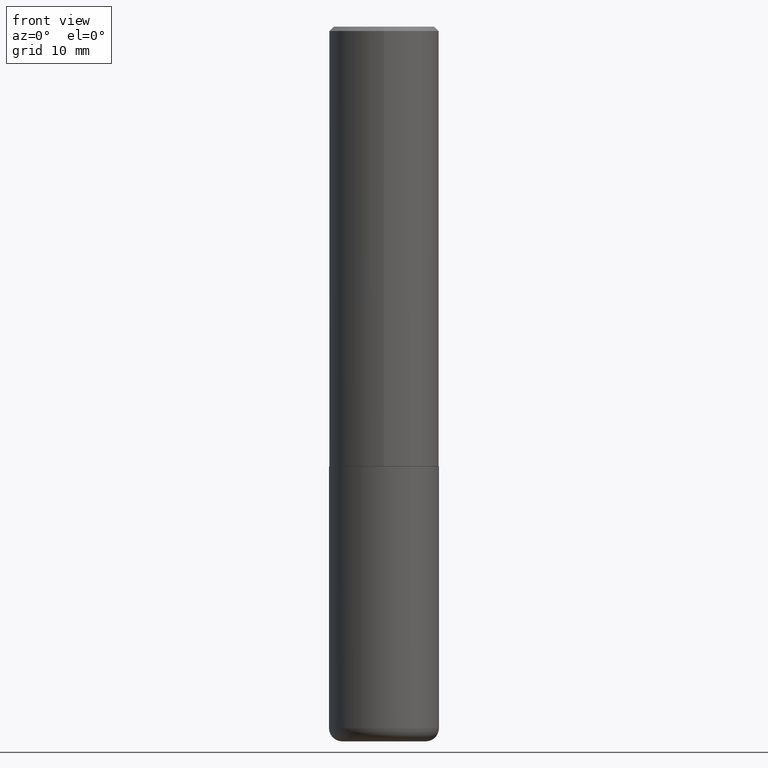
[diagram: clean part render]
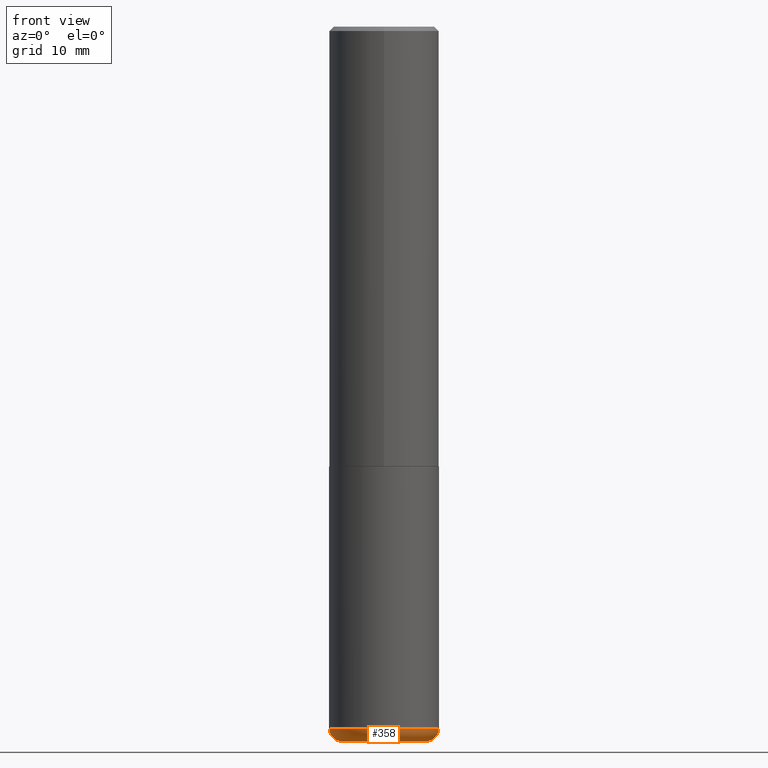
[diagram: same view with one face highlighted and labeled with its STEP entity id]
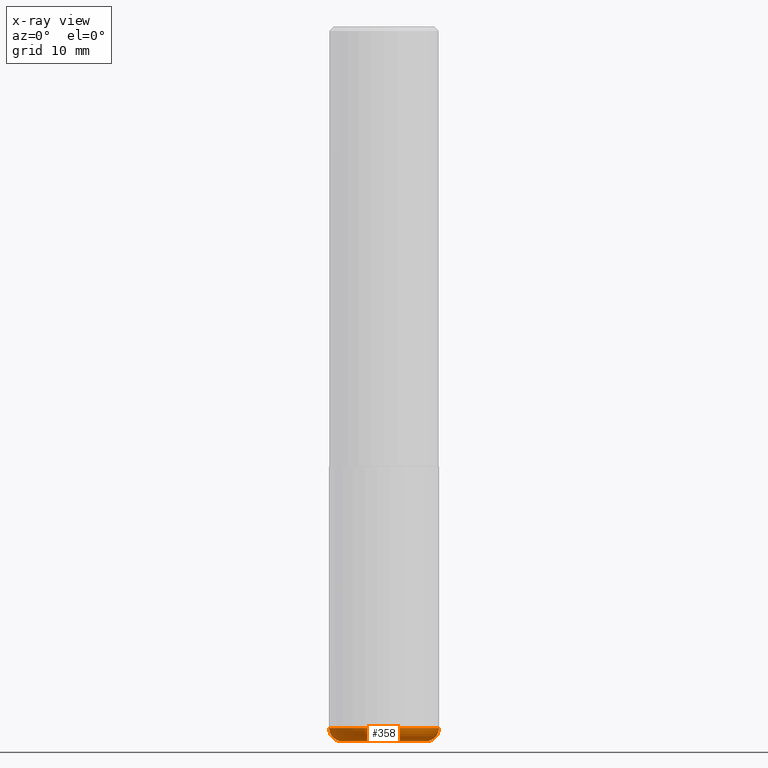
[diagram: x-ray of the same camera — body ghosted, the highlighted face saturated]
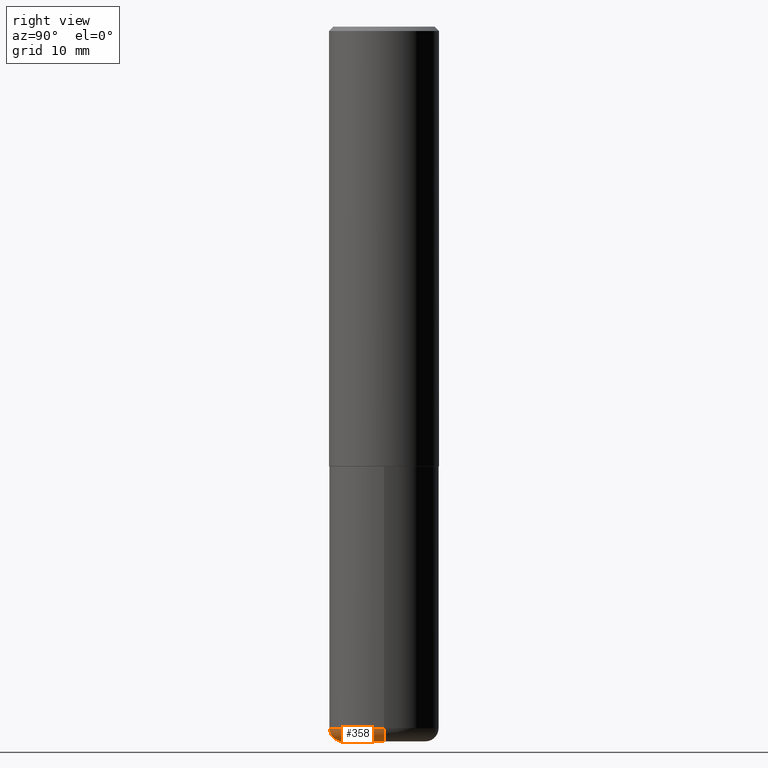
[diagram: same view with one face highlighted and labeled with its STEP entity id]
A machine part, front view. The second image highlights one B-rep face of the part: STEP entity #358.
The next image is the same camera in x-ray: the body ghosted, the highlighted face saturated — about 0% of this face is hidden behind the body in this view.
A second angle (right view) of the same face is appended — the face is thin or edge-on in the first view.
In plain terms, the highlighted toroidal blend (fillet) surface has major radius 4.826 mm and minor (blend) radius 1.524 mm.
Its self-contained STEP definition (entity closure, byte-faithful):
#7 = DIRECTION ( 'NONE',  ( 1.000000000000000000, -6.982962677686270655E-15, 0.000000000000000000 ) ) ;
#11 = DIRECTION ( 'NONE',  ( -2.445468806185136597E-29, 3.491481338843145583E-15, 1.000000000000000000 ) ) ;
#13 = EDGE_CURVE ( 'NONE', #159, #324, #288, .T. ) ;
#34 = CIRCLE ( 'NONE', #302, 0.05999999999999994227 ) ;
#43 = CARTESIAN_POINT ( 'NONE',  ( 0.1899999999999999745, -1.246458837967002615E-14, -3.189999999999999947 ) ) ;
#52 = DIRECTION ( 'NONE',  ( 7.105427357601001859E-15, 1.000000000000000000, -3.491481338843145583E-15 ) ) ;
#59 = CARTESIAN_POINT ( 'NONE',  ( -0.1899999999999999745, -9.787794272965444556E-15, -3.189999999999999947 ) ) ;
#69 = CARTESIAN_POINT ( 'NONE',  ( 7.947773620101693940E-29, -1.134731435124022443E-14, -3.250000000000000000 ) ) ;
#72 = DIRECTION ( 'NONE',  ( -2.445468806185136597E-29, 3.491481338843145583E-15, 1.000000000000000000 ) ) ;
#73 = ORIENTED_EDGE ( 'NONE', *, *, #13, .F. ) ;
#77 = DIRECTION ( 'NONE',  ( 1.000000000000000000, -6.982962677686265133E-15, 4.883557194083112340E-29 ) ) ;
#91 = ORIENTED_EDGE ( 'NONE', *, *, #364, .T. ) ;
#92 = FACE_OUTER_BOUND ( 'NONE', #298, .T. ) ;
#105 = CARTESIAN_POINT ( 'NONE',  ( 7.801045491730585789E-29, -1.113782547090963453E-14, -3.189999999999999947 ) ) ;
#108 = VERTEX_POINT ( 'NONE', #334 ) ;
#124 = DIRECTION ( 'NONE',  ( -1.000000000000000000, 7.105427357600997914E-15, 0.000000000000000000 ) ) ;
#151 = AXIS2_PLACEMENT_3D ( 'NONE', #105, #291, #7 ) ;
#159 = VERTEX_POINT ( 'NONE', #381 ) ;
#184 = ORIENTED_EDGE ( 'NONE', *, *, #376, .T. ) ;
#193 = DIRECTION ( 'NONE',  ( -6.982962677686266711E-15, -1.000000000000000000, 3.491481338843145583E-15 ) ) ;
#212 = AXIS2_PLACEMENT_3D ( 'NONE', #69, #11, #368 ) ;
#246 = EDGE_CURVE ( 'NONE', #108, #159, #290, .T. ) ;
#254 = VERTEX_POINT ( 'NONE', #317 ) ;
#282 = CARTESIAN_POINT ( 'NONE',  ( 7.801045491730585789E-29, -1.113782547090963453E-14, -3.189999999999999947 ) ) ;
#288 = CIRCLE ( 'NONE', #151, 0.2500000000000000000 ) ;
#290 = CIRCLE ( 'NONE', #316, 0.05999999999999994227 ) ;
#291 = DIRECTION ( 'NONE',  ( -2.445468806185136597E-29, 3.491481338843145583E-15, 1.000000000000000000 ) ) ;
#292 = ORIENTED_EDGE ( 'NONE', *, *, #246, .F. ) ;
#298 = EDGE_LOOP ( 'NONE', ( #292, #91, #184, #73 ) ) ;
#301 = DIRECTION ( 'NONE',  ( 1.000000000000000000, -6.982962677686274599E-15, 0.000000000000000000 ) ) ;
#302 = AXIS2_PLACEMENT_3D ( 'NONE', #43, #193, #301 ) ;
#308 = AXIS2_PLACEMENT_3D ( 'NONE', #282, #72, #77 ) ;
#316 = AXIS2_PLACEMENT_3D ( 'NONE', #59, #52, #124 ) ;
#317 = CARTESIAN_POINT ( 'NONE',  ( 0.1899999999999999745, -1.267407726000061289E-14, -3.250000000000000000 ) ) ;
#324 = VERTEX_POINT ( 'NONE', #344 ) ;
#334 = CARTESIAN_POINT ( 'NONE',  ( -0.1899999999999999745, -9.679375892402709259E-15, -3.250000000000000000 ) ) ;
#344 = CARTESIAN_POINT ( 'NONE',  ( 0.2499999999999999722, -1.288356614033120121E-14, -3.189999999999999947 ) ) ;
#358 = ADVANCED_FACE ( 'NONE', ( #92 ), #417, .T. ) ;
#364 = EDGE_CURVE ( 'NONE', #108, #254, #384, .T. ) ;
#368 = DIRECTION ( 'NONE',  ( 1.000000000000000000, -6.982962677686261977E-15, 0.000000000000000000 ) ) ;
#376 = EDGE_CURVE ( 'NONE', #254, #324, #34, .T. ) ;
#381 = CARTESIAN_POINT ( 'NONE',  ( -0.2499999999999999722, -9.361468631509382488E-15, -3.189999999999999947 ) ) ;
#384 = CIRCLE ( 'NONE', #212, 0.1899999999999999745 ) ;
#417 = TOROIDAL_SURFACE ( 'NONE', #308, 0.1899999999999999745, 0.05999999999999995615 ) ;